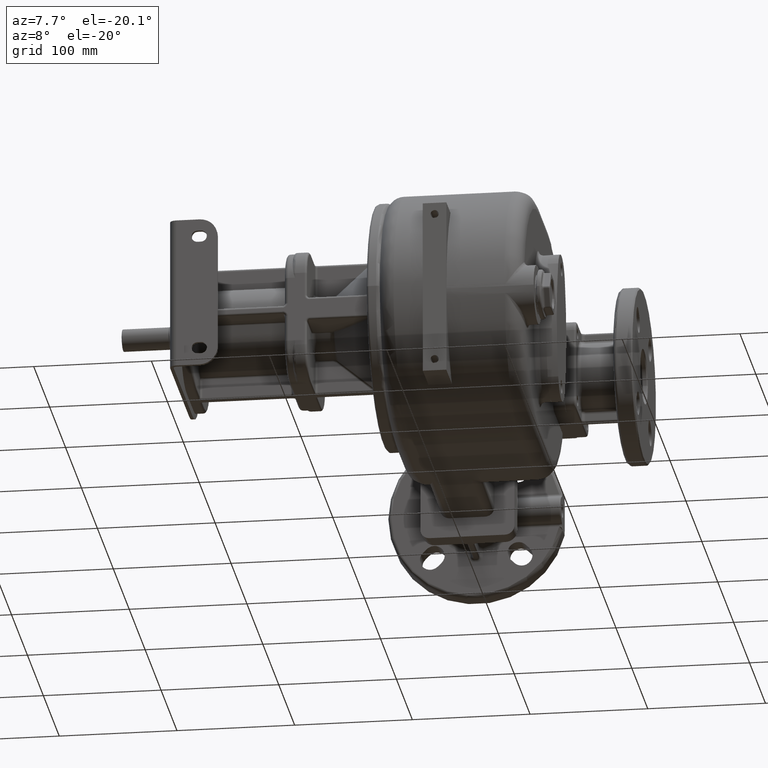
[diagram: clean part render]
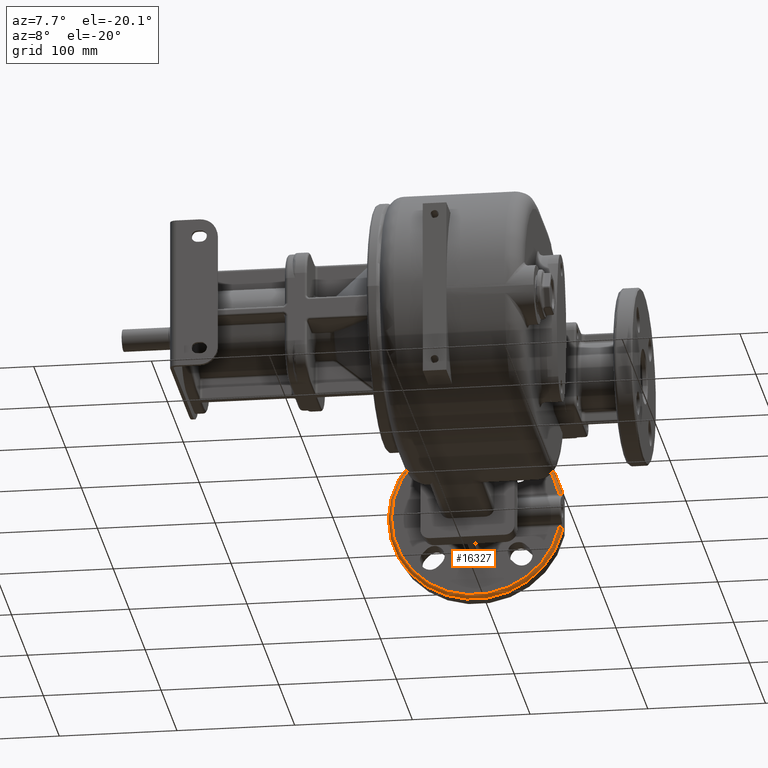
[diagram: same view with one face highlighted and labeled with its STEP entity id]
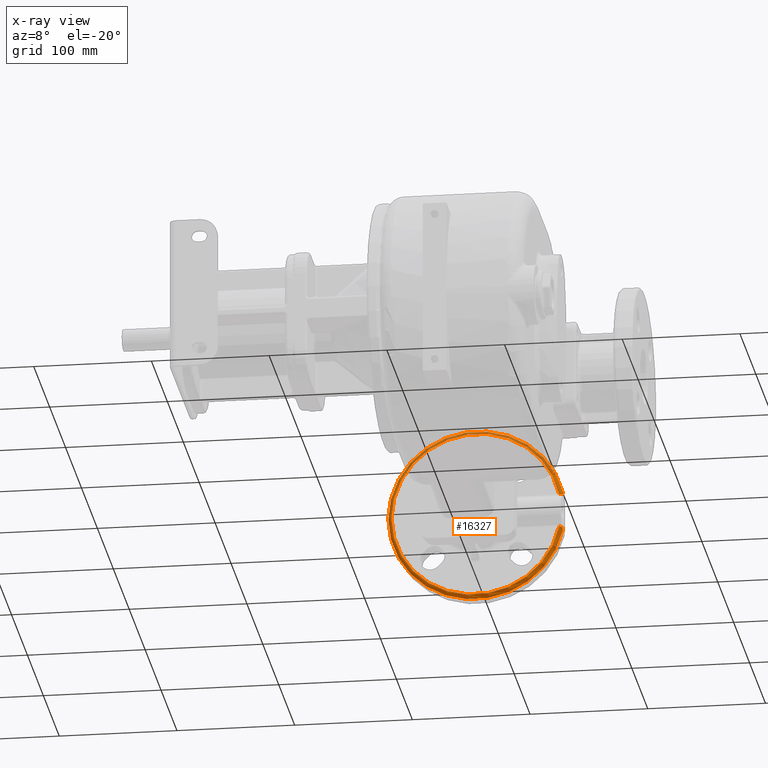
[diagram: x-ray of the same camera — body ghosted, the highlighted face saturated]
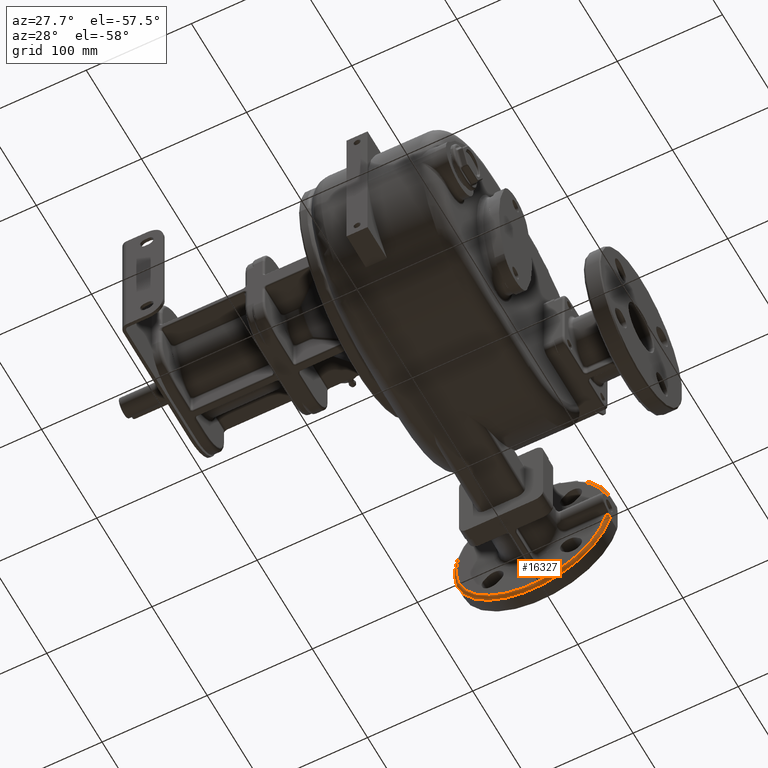
[diagram: same view with one face highlighted and labeled with its STEP entity id]
A machine part, auxiliary view. The second image highlights one B-rep face of the part: STEP entity #16327.
The next image is the same camera in x-ray: the body ghosted, the highlighted face saturated — about 25% of this face is hidden behind the body in this view.
A second angle (auxiliary view) of the same face is appended — the face is thin or edge-on in the first view.
In plain terms, the highlighted toroidal blend (fillet) surface has major radius 72 mm and minor (blend) radius 3 mm.
Its self-contained STEP definition (entity closure, byte-faithful):
#595=CARTESIAN_POINT('',(6.3E1,3.368685242662E2,-7.203766202118E1));
#596=CARTESIAN_POINT('',(6.3E1,3.369322003610E2,-7.183215232907E1));
#597=CARTESIAN_POINT('',(6.3E1,3.370657702166E2,-7.144322338392E1));
#598=CARTESIAN_POINT('',(6.3E1,3.372877245018E2,-7.092635634386E1));
#599=CARTESIAN_POINT('',(6.3E1,3.375367573513E2,-7.047967185739E1));
#600=CARTESIAN_POINT('',(6.3E1,3.378186221711E2,-7.011399318625E1));
#601=CARTESIAN_POINT('',(6.3E1,3.381504214935E2,-6.985544429717E1));
#602=CARTESIAN_POINT('',(6.3E1,3.383805876527E2,-6.979534946591E1));
#603=CARTESIAN_POINT('',(6.3E1,3.385E2,-6.979534946591E1));
#605=CARTESIAN_POINT('',(6.053367989833E1,3.385E2,-7.254316770518E1));
#606=DIRECTION('',(-2.007893374280E-1,0.E0,9.796344430323E-1));
#607=DIRECTION('',(0.E0,-1.E0,0.E0));
#608=AXIS2_PLACEMENT_3D('',#605,#606,#607);
#610=CARTESIAN_POINT('',(-1.E1,3.355E2,-8.7E1));
#611=DIRECTION('',(0.E0,-1.E0,0.E0));
#612=DIRECTION('',(9.796344430324E-1,0.E0,2.007893374278E-1));
#613=AXIS2_PLACEMENT_3D('',#610,#611,#612);
#615=CARTESIAN_POINT('',(6.3E1,3.385E2,-1.042046505341E2));
#616=CARTESIAN_POINT('',(6.3E1,3.383805721810E2,-1.042046505341E2));
#617=CARTESIAN_POINT('',(6.3E1,3.381503860596E2,-1.041445414264E2));
#618=CARTESIAN_POINT('',(6.3E1,3.378185813634E2,-1.038859607648E2));
#619=CARTESIAN_POINT('',(6.3E1,3.375367569319E2,-1.035203230314E2));
#620=CARTESIAN_POINT('',(6.3E1,3.372877273146E2,-1.030736495514E2));
#621=CARTESIAN_POINT('',(6.3E1,3.370657775505E2,-1.025567953253E2));
#622=CARTESIAN_POINT('',(6.3E1,3.369322028750E2,-1.021678560938E2));
#623=CARTESIAN_POINT('',(6.3E1,3.368685241502E2,-1.019623379088E2));
#933=CARTESIAN_POINT('',(-1.E1,3.385E2,-8.7E1));
#934=DIRECTION('',(0.E0,-1.E0,0.E0));
#935=DIRECTION('',(9.733333333333E-1,0.E0,2.293953404545E-1));
#936=AXIS2_PLACEMENT_3D('',#933,#934,#935);
#946=CARTESIAN_POINT('',(6.3E1,3.368685241502E2,-1.019623379088E2));
#954=CARTESIAN_POINT('',(6.053367668550E1,3.384999844412E2,-1.014568312308E2));
#955=DIRECTION('',(2.007892545926E-1,-8.528880649092E-7,9.796344600102E-1));
#956=DIRECTION('',(9.262870651865E-7,-9.999999999990E-1,-1.060473671700E-6));
#957=AXIS2_PLACEMENT_3D('',#954,#955,#956);
#1156=CARTESIAN_POINT('',(6.3E1,3.368685242662E2,-7.203766202118E1));
#14567=CARTESIAN_POINT('',(6.053367989833E1,3.355E2,-7.254316770520E1));
#14568=CARTESIAN_POINT('',(6.053367989833E1,3.355E2,-1.014568322948E2));
#14569=VERTEX_POINT('',#14567);
#14570=VERTEX_POINT('',#14568);
#14572=VERTEX_POINT('',#1156);
#14573=VERTEX_POINT('',#946);
#14575=CARTESIAN_POINT('',(6.3E1,3.385E2,-6.979534946591E1));
#14577=VERTEX_POINT('',#14575);
#14579=CARTESIAN_POINT('',(6.3E1,3.385E2,-1.042046505341E2));
#14581=VERTEX_POINT('',#14579);
#16309=CARTESIAN_POINT('',(-1.E1,3.385E2,-8.7E1));
#16310=DIRECTION('',(0.E0,1.E0,0.E0));
#16311=DIRECTION('',(-2.912475882464E-3,0.E0,-9.999957587331E-1));
#16312=AXIS2_PLACEMENT_3D('',#16309,#16310,#16311);
#16313=TOROIDAL_SURFACE('',#16312,7.2E1,3.E0);
#16315=ORIENTED_EDGE('',*,*,#16314,.F.);
#16317=ORIENTED_EDGE('',*,*,#16316,.F.);
#16318=ORIENTED_EDGE('',*,*,#16241,.T.);
#16320=ORIENTED_EDGE('',*,*,#16319,.T.);
#16322=ORIENTED_EDGE('',*,*,#16321,.F.);
#16324=ORIENTED_EDGE('',*,*,#16323,.F.);
#16325=EDGE_LOOP('',(#16315,#16317,#16318,#16320,#16322,#16324));
#16326=FACE_OUTER_BOUND('',#16325,.F.);
#16327=ADVANCED_FACE('',(#16326),#16313,.T.);
#604=B_SPLINE_CURVE_WITH_KNOTS('',3,(#595,#596,#597,#598,#599,#600,#601,#602,
#603),.UNSPECIFIED.,.F.,.F.,(4,1,1,1,1,1,4),(0.E0,1.666666666667E-1,
3.333333333333E-1,5.E-1,6.666666666667E-1,8.333333333333E-1,1.E0),
.UNSPECIFIED.);
#609=CIRCLE('',#608,3.E0);
#614=CIRCLE('',#613,7.2E1);
#624=B_SPLINE_CURVE_WITH_KNOTS('',3,(#615,#616,#617,#618,#619,#620,#621,#622,
#623),.UNSPECIFIED.,.F.,.F.,(4,1,1,1,1,1,4),(0.E0,1.666666666667E-1,
3.333333333333E-1,5.E-1,6.666666666667E-1,8.333333333333E-1,1.E0),
.UNSPECIFIED.);
#937=CIRCLE('',#936,7.5E1);
#958=CIRCLE('',#957,2.999992220579E0);
#16241=EDGE_CURVE('',#14569,#14570,#614,.T.);
#16314=EDGE_CURVE('',#14572,#14577,#604,.T.);
#16316=EDGE_CURVE('',#14569,#14572,#609,.T.);
#16319=EDGE_CURVE('',#14570,#14573,#958,.T.);
#16321=EDGE_CURVE('',#14581,#14573,#624,.T.);
#16323=EDGE_CURVE('',#14577,#14581,#937,.T.);